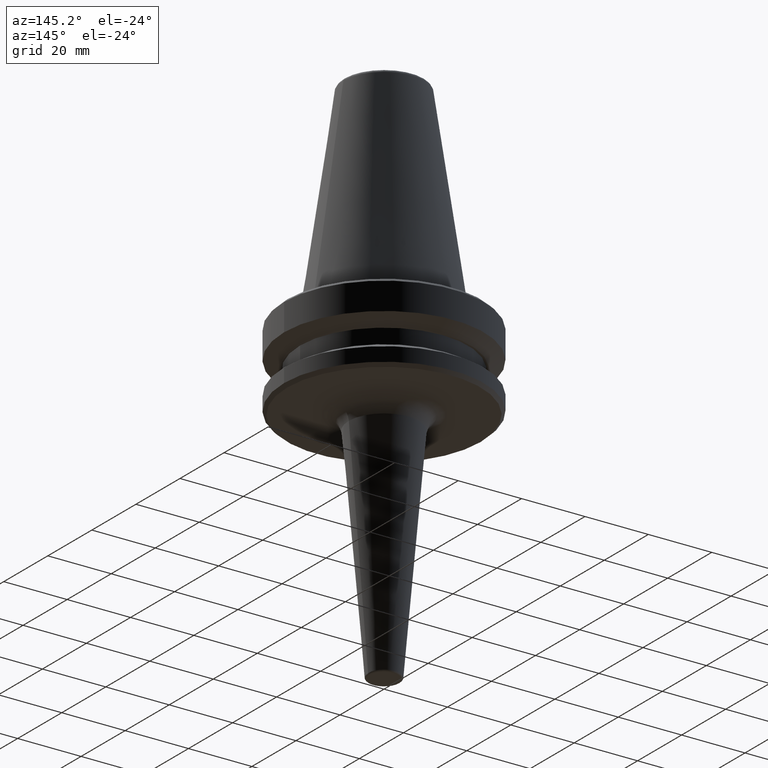
[diagram: clean part render]
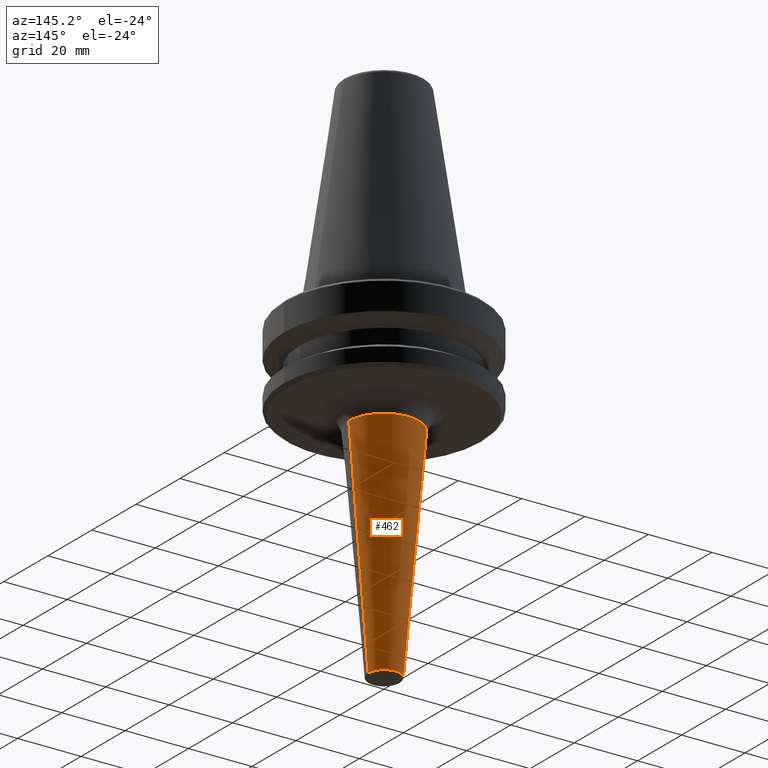
[diagram: same view with one face highlighted and labeled with its STEP entity id]
A machine part, auxiliary view. The second image highlights one B-rep face of the part: STEP entity #462.
In plain terms, the highlighted conical surface has half-angle 4.953 deg.
Its self-contained STEP definition (entity closure, byte-faithful):
#42 = ORIENTED_EDGE ( 'NONE', *, *, #547, .T. ) ;
#50 = VERTEX_POINT ( 'NONE', #683 ) ;
#51 = DIRECTION ( 'NONE',  ( -0.0000000000000000000, -0.0000000000000000000, 1.000000000000000000 ) ) ;
#100 = EDGE_LOOP ( 'NONE', ( #676, #42, #882, #549 ) ) ;
#113 = AXIS2_PLACEMENT_3D ( 'NONE', #715, #235, #797 ) ;
#154 = CARTESIAN_POINT ( 'NONE',  ( 11.10408196984262800, 0.0000000000000000000, -96.96828496336233600 ) ) ;
#227 = CARTESIAN_POINT ( 'NONE',  ( 0.0000000000000000000, 0.0000000000000000000, -96.96828496336233600 ) ) ;
#235 = DIRECTION ( 'NONE',  ( -0.0000000000000000000, -0.0000000000000000000, 1.000000000000000000 ) ) ;
#299 = EDGE_CURVE ( 'NONE', #300, #685, #959, .T. ) ;
#300 = VERTEX_POINT ( 'NONE', #154 ) ;
#305 = FACE_OUTER_BOUND ( 'NONE', #100, .T. ) ;
#321 = DIRECTION ( 'NONE',  ( 1.000000000000000000, 0.0000000000000000000, 0.0000000000000000000 ) ) ;
#382 = EDGE_CURVE ( 'NONE', #670, #300, #665, .T. ) ;
#402 = VECTOR ( 'NONE', #805, 1000.000000000000200 ) ;
#443 = CARTESIAN_POINT ( 'NONE',  ( -11.10408196984262800, 1.359857844183761100E-015, -96.96828496336233600 ) ) ;
#449 = VECTOR ( 'NONE', #505, 1000.000000000000200 ) ;
#462 = ADVANCED_FACE ( 'NONE', ( #305 ), #587, .T. ) ;
#505 = DIRECTION ( 'NONE',  ( 0.08634300732914700100, 0.0000000000000000000, 0.9962654691824658300 ) ) ;
#547 = EDGE_CURVE ( 'NONE', #50, #685, #832, .T. ) ;
#549 = ORIENTED_EDGE ( 'NONE', *, *, #382, .F. ) ;
#558 = CARTESIAN_POINT ( 'NONE',  ( -11.10408196984262800, 1.664876173667597200E-015, -96.96828496336233600 ) ) ;
#587 = CONICAL_SURFACE ( 'NONE', #996, 11.10408196984262800, 0.08645065168737400800 ) ;
#601 = CARTESIAN_POINT ( 'NONE',  ( 0.0000000000000000000, 0.0000000000000000000, -96.96828496336233600 ) ) ;
#615 = EDGE_CURVE ( 'NONE', #670, #50, #784, .T. ) ;
#636 = CARTESIAN_POINT ( 'NONE',  ( 5.039591803015705200, 0.0000000000000000000, -166.9431715036729100 ) ) ;
#665 = LINE ( 'NONE', #740, #449 ) ;
#670 = VERTEX_POINT ( 'NONE', #636 ) ;
#676 = ORIENTED_EDGE ( 'NONE', *, *, #615, .T. ) ;
#683 = CARTESIAN_POINT ( 'NONE',  ( -5.039591803015705200, 6.171719970572423100E-016, -166.9431715036729100 ) ) ;
#684 = DIRECTION ( 'NONE',  ( 1.000000000000000000, 0.0000000000000000000, 0.0000000000000000000 ) ) ;
#685 = VERTEX_POINT ( 'NONE', #558 ) ;
#715 = CARTESIAN_POINT ( 'NONE',  ( 0.0000000000000000000, 0.0000000000000000000, -166.9431715036729100 ) ) ;
#737 = AXIS2_PLACEMENT_3D ( 'NONE', #227, #791, #321 ) ;
#740 = CARTESIAN_POINT ( 'NONE',  ( 11.10408196984262800, 0.0000000000000000000, -96.96828496336233600 ) ) ;
#784 = CIRCLE ( 'NONE', #113, 5.039591803015714100 ) ;
#791 = DIRECTION ( 'NONE',  ( -0.0000000000000000000, -0.0000000000000000000, 1.000000000000000000 ) ) ;
#797 = DIRECTION ( 'NONE',  ( 1.000000000000000000, 0.0000000000000000000, 0.0000000000000000000 ) ) ;
#805 = DIRECTION ( 'NONE',  ( -0.08634300732914700100, 1.057396875543963500E-017, 0.9962654691824658300 ) ) ;
#832 = LINE ( 'NONE', #443, #402 ) ;
#882 = ORIENTED_EDGE ( 'NONE', *, *, #299, .F. ) ;
#959 = CIRCLE ( 'NONE', #737, 11.10408196984262800 ) ;
#996 = AXIS2_PLACEMENT_3D ( 'NONE', #601, #51, #684 ) ;